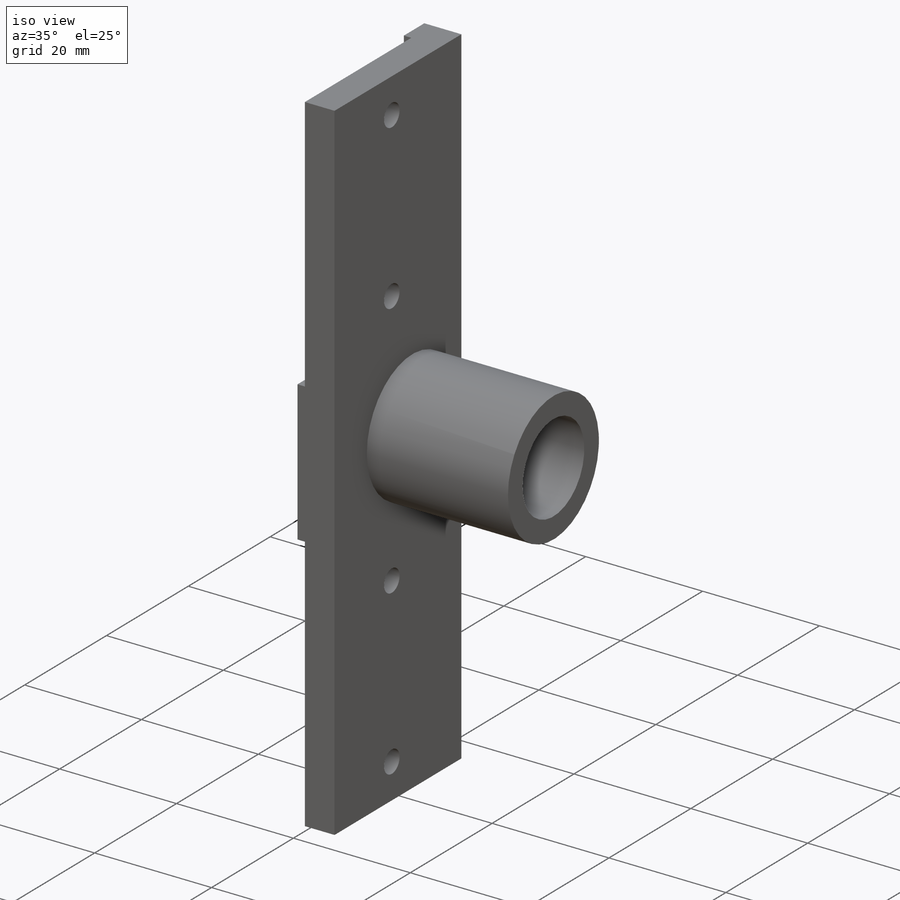
[diagram: iso view]
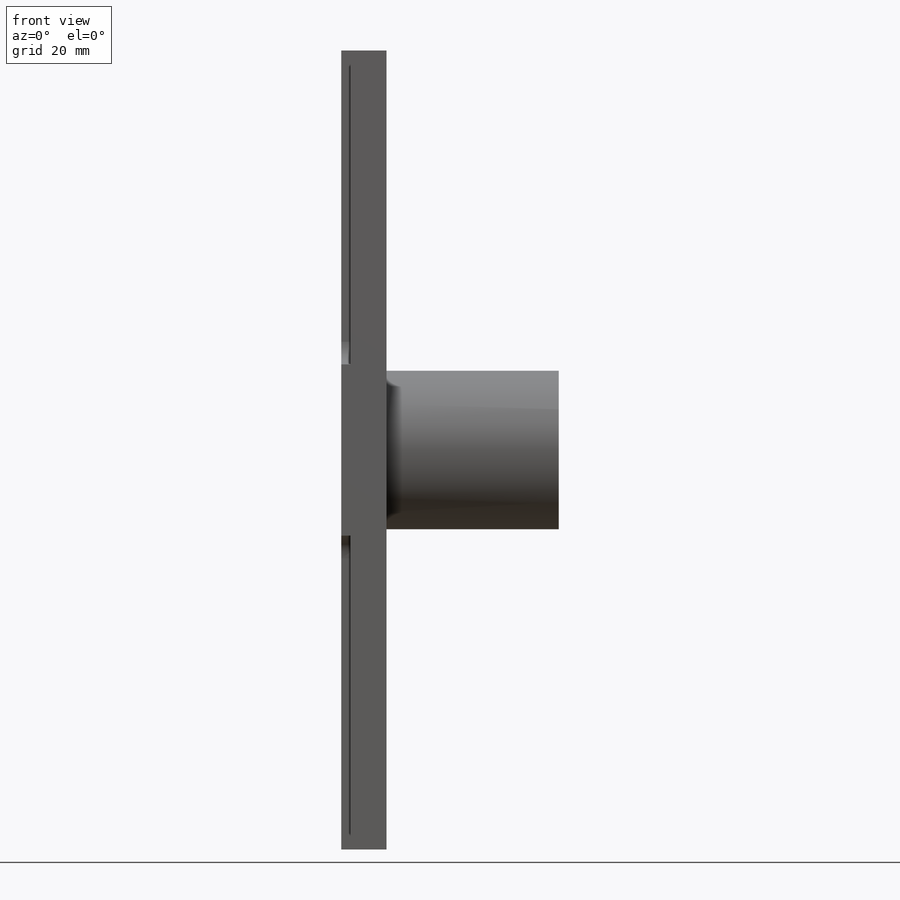
[diagram: front view]
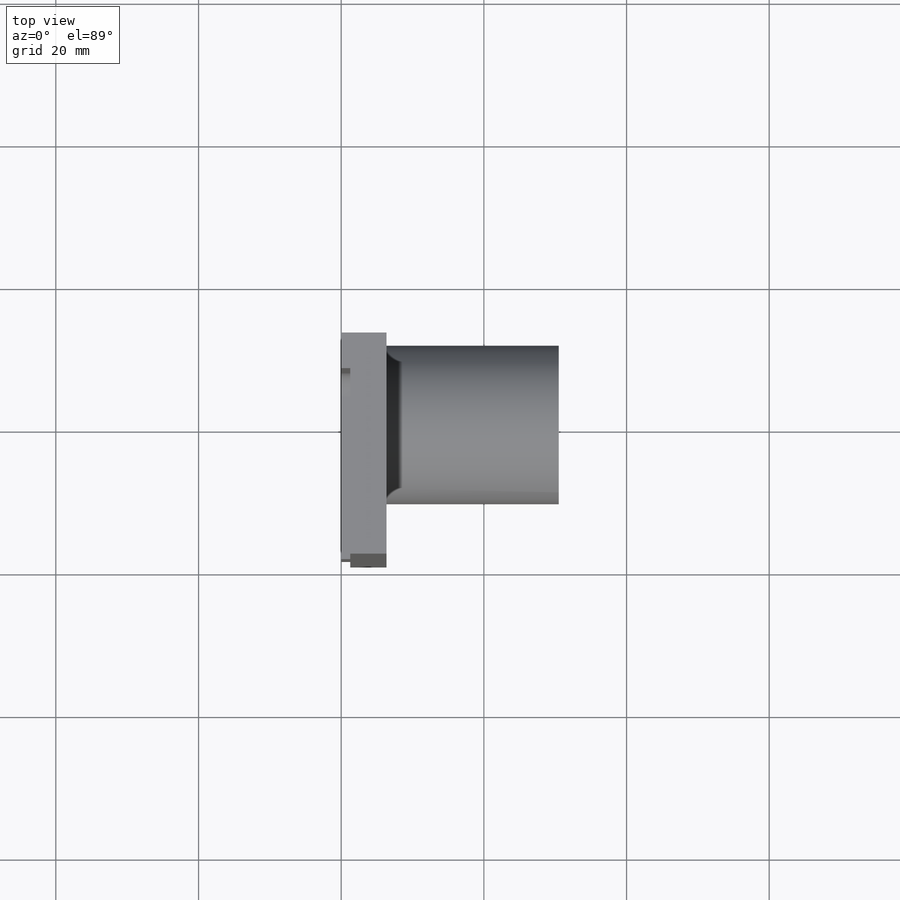
[diagram: top view]
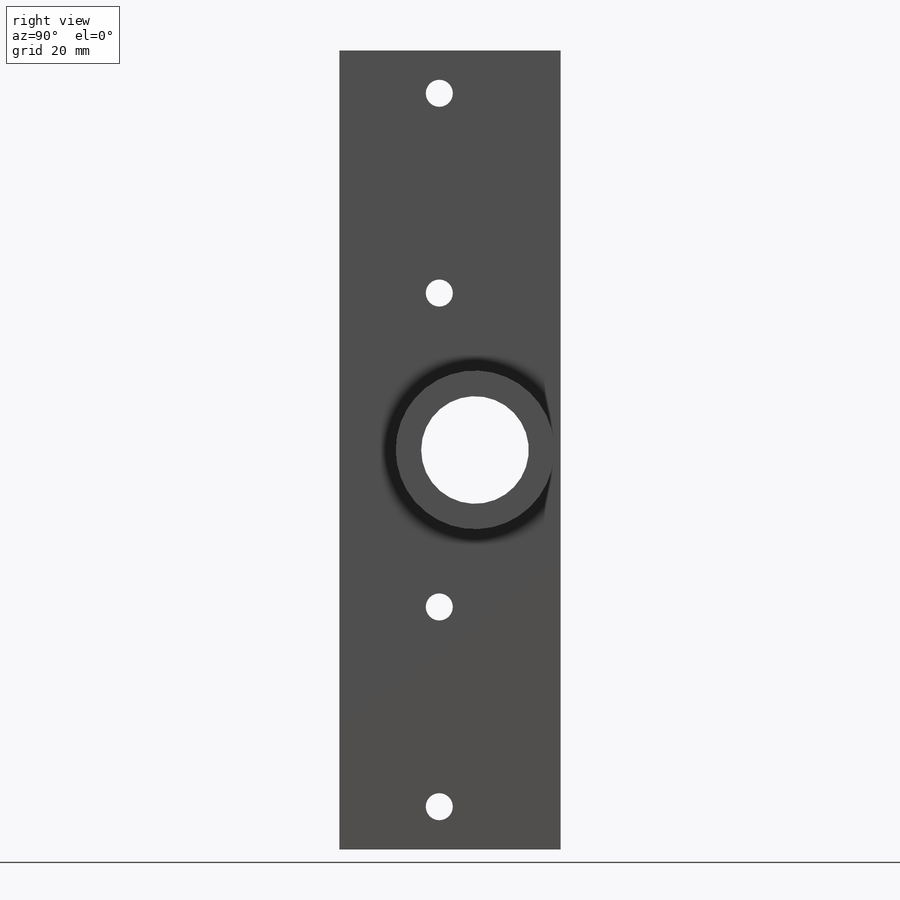
[diagram: right view]
SOLIDWORKS PART (.sldprt)
format: sldprt  version: not decoded by parser v0  size: 254,976 bytes
history: native  units: mm
features: sketch x6, mirror x3, extrude x2, cut_extrude x2, thread x2, material x1, fillet x1, hole x1 (+11 scaffold rows collapsed)
feature tree (29):
  scaffold x11  (default folders/planes/origin — collapsed)
  material  "6061-T6 (SS)"
  sketch  "Sketch1"  dims[c1.D1=22.225mm c1.D5=~15.08252mm c1.D2=~31.072875mm c2.D2=60.0deg c2.D3=15.0mm c2.D4=112.0mm c2.D1=30.0mm c3.D2=40.0mm c3.D3=31.0mm c3.D6=12.0mm]
  extrude  "Boss-Extrude1"  Depth=6.35mm
  mirror  "Mirror1"
  sketch  "Sketch2"  dims[D1=22.225mm]
  extrude  "Boss-Extrude2"  Depth=24.152538mm
  sketch  "Sketch3"
  cut_extrude  "Cut-Extrude1"  [1 undecoded]
  sketch  "Sketch4"  dims[D1=26.0mm D2=44.0mm]
  cut_extrude  "Cut-Extrude2"  Depth=5.08mm
  fillet  "Fillet1"  Radius=3.175mm
  mirror  "Mirror2"
  hole  "#10-24 Tapped Hole1"  Diameter=3.7973mm Depth=14.95mm
  sketch  "Sketch6"  dims[D1=22.0mm D2=50.0mm D3=5.0mm]
  sketch  "Sketch5"  dims[hole-wizard template sketch: 50 standard entries collapsed; hole parameters above]
  thread  "Hole Thread1"  Diameter=5.08mm  [1 undecoded]
  thread  "Hole Thread2"  Diameter=5.08mm  [1 undecoded]
  mirror  "Mirror3"
decode coverage: 12 of 17 modeling features carry decoded parameters
note: ~ marks probable driven/reference dimensions
note: 3 parameter values undecoded
note: suppression state not decoded; provenance and decode notes live in map.json
